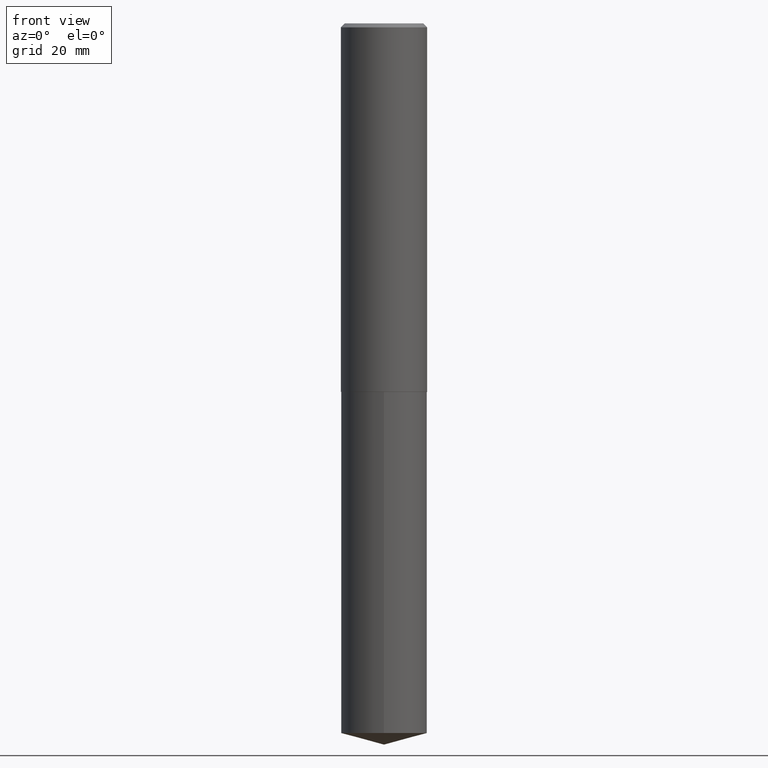
[diagram: clean part render]
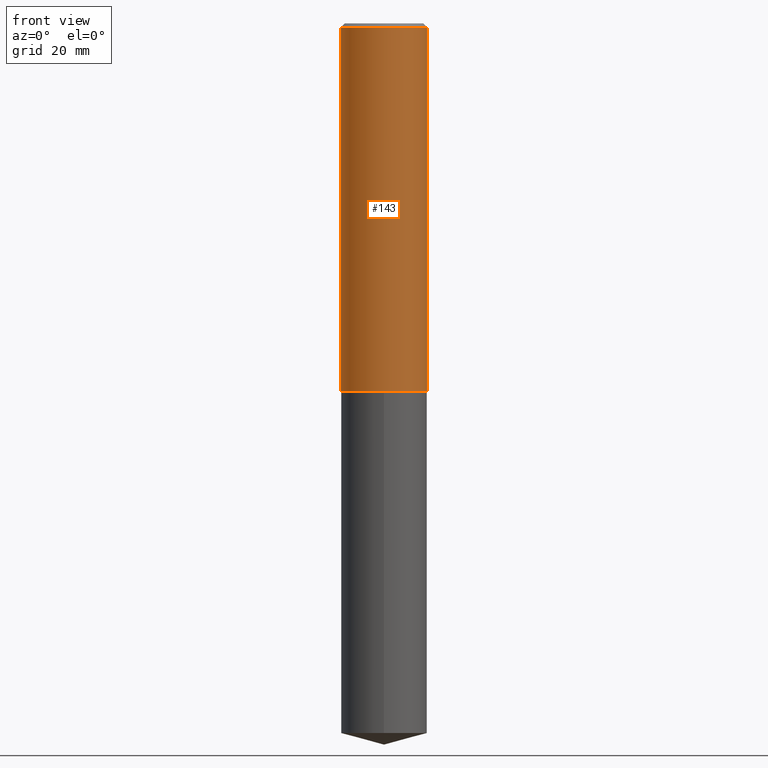
[diagram: same view with one face highlighted and labeled with its STEP entity id]
A machine part, front view. The second image highlights one B-rep face of the part: STEP entity #143.
In plain terms, the highlighted cylindrical surface (partial cylindrical patch) has radius 8.7313 mm, axis along (-0, 0, 1).
Its self-contained STEP definition (entity closure, byte-faithful):
#37 = DIRECTION ( 'NONE',  ( -2.445468806185136877E-29, 3.491481338843145188E-15, 1.000000000000000000 ) ) ;
#41 = DIRECTION ( 'NONE',  ( -2.445468806185136597E-29, 3.491481338843145583E-15, 1.000000000000000000 ) ) ;
#53 = VERTEX_POINT ( 'NONE', #194 ) ;
#57 = ORIENTED_EDGE ( 'NONE', *, *, #287, .T. ) ;
#58 = FACE_OUTER_BOUND ( 'NONE', #198, .T. ) ;
#78 = CIRCLE ( 'NONE', #184, 0.3437500000000000000 ) ;
#80 = CARTESIAN_POINT ( 'NONE',  ( 7.182341883765743709E-29, -1.025448069218231586E-14, -2.936999999999999389 ) ) ;
#91 = ORIENTED_EDGE ( 'NONE', *, *, #291, .F. ) ;
#101 = DIRECTION ( 'NONE',  ( -2.445468806185136877E-29, 3.491481338843145188E-15, 1.000000000000000000 ) ) ;
#102 = DIRECTION ( 'NONE',  ( 1.000000000000000000, -6.982962677686266711E-15, 4.876176775795936353E-29 ) ) ;
#110 = DIRECTION ( 'NONE',  ( 1.000000000000000000, -6.982962677686265922E-15, 0.000000000000000000 ) ) ;
#113 = LINE ( 'NONE', #173, #313 ) ;
#124 = CIRCLE ( 'NONE', #131, 0.3437500000000003886 ) ;
#125 = VERTEX_POINT ( 'NONE', #252 ) ;
#131 = AXIS2_PLACEMENT_3D ( 'NONE', #80, #41, #182 ) ;
#133 = CARTESIAN_POINT ( 'NONE',  ( 0.000000000000000000, 0.000000000000000000, 0.000000000000000000 ) ) ;
#142 = DIRECTION ( 'NONE',  ( -2.445468806185136597E-29, 3.491481338843145583E-15, 1.000000000000000000 ) ) ;
#143 = ADVANCED_FACE ( 'NONE', ( #58 ), #248, .T. ) ;
#172 = CARTESIAN_POINT ( 'NONE',  ( 7.642090019328583394E-31, -1.091087918388487432E-16, -0.03125000000000012490 ) ) ;
#173 = CARTESIAN_POINT ( 'NONE',  ( -0.3437500000000001665, 2.442490654175345572E-15, -1.690883937275124756E-29 ) ) ;
#176 = CARTESIAN_POINT ( 'NONE',  ( -0.3437500000000000000, -2.739304087835235330E-15, -0.03125000000000012490 ) ) ;
#182 = DIRECTION ( 'NONE',  ( 1.000000000000000000, -6.982962677686266711E-15, 0.000000000000000000 ) ) ;
#184 = AXIS2_PLACEMENT_3D ( 'NONE', #172, #142, #110 ) ;
#194 = CARTESIAN_POINT ( 'NONE',  ( 0.3437500000000003886, -1.265487411263697241E-14, -2.936999999999999389 ) ) ;
#195 = VECTOR ( 'NONE', #101, 39.37007874015748143 ) ;
#198 = EDGE_LOOP ( 'NONE', ( #233, #57, #216, #91 ) ) ;
#216 = ORIENTED_EDGE ( 'NONE', *, *, #230, .T. ) ;
#230 = EDGE_CURVE ( 'NONE', #53, #238, #333, .T. ) ;
#233 = ORIENTED_EDGE ( 'NONE', *, *, #331, .F. ) ;
#238 = VERTEX_POINT ( 'NONE', #337 ) ;
#245 = CARTESIAN_POINT ( 'NONE',  ( 0.3437500000000001665, -2.400393420454655365E-15, 1.676185766679853980E-29 ) ) ;
#246 = DIRECTION ( 'NONE',  ( -2.445468806185136597E-29, 3.491481338843145583E-15, 1.000000000000000000 ) ) ;
#248 = CYLINDRICAL_SURFACE ( 'NONE', #347, 0.3437500000000001665 ) ;
#252 = CARTESIAN_POINT ( 'NONE',  ( -0.3437500000000003886, -7.811990038006968315E-15, -2.936999999999999389 ) ) ;
#287 = EDGE_CURVE ( 'NONE', #125, #53, #124, .T. ) ;
#291 = EDGE_CURVE ( 'NONE', #381, #238, #78, .T. ) ;
#313 = VECTOR ( 'NONE', #37, 39.37007874015748143 ) ;
#331 = EDGE_CURVE ( 'NONE', #125, #381, #113, .T. ) ;
#333 = LINE ( 'NONE', #245, #195 ) ;
#337 = CARTESIAN_POINT ( 'NONE',  ( 0.3437500000000000000, -2.509502212293502494E-15, -0.03125000000000012490 ) ) ;
#347 = AXIS2_PLACEMENT_3D ( 'NONE', #133, #246, #102 ) ;
#381 = VERTEX_POINT ( 'NONE', #176 ) ;